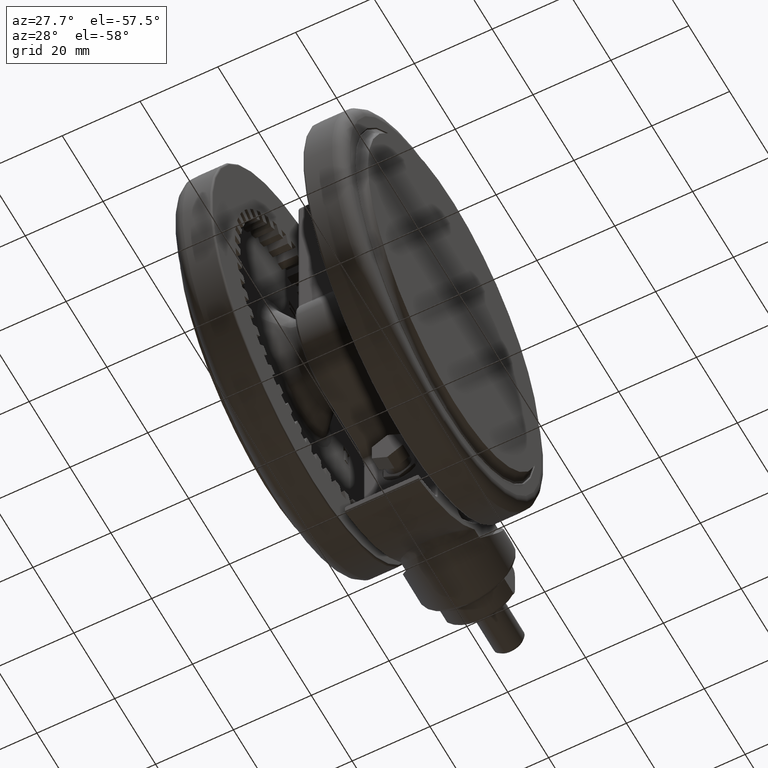
[diagram: clean part render]
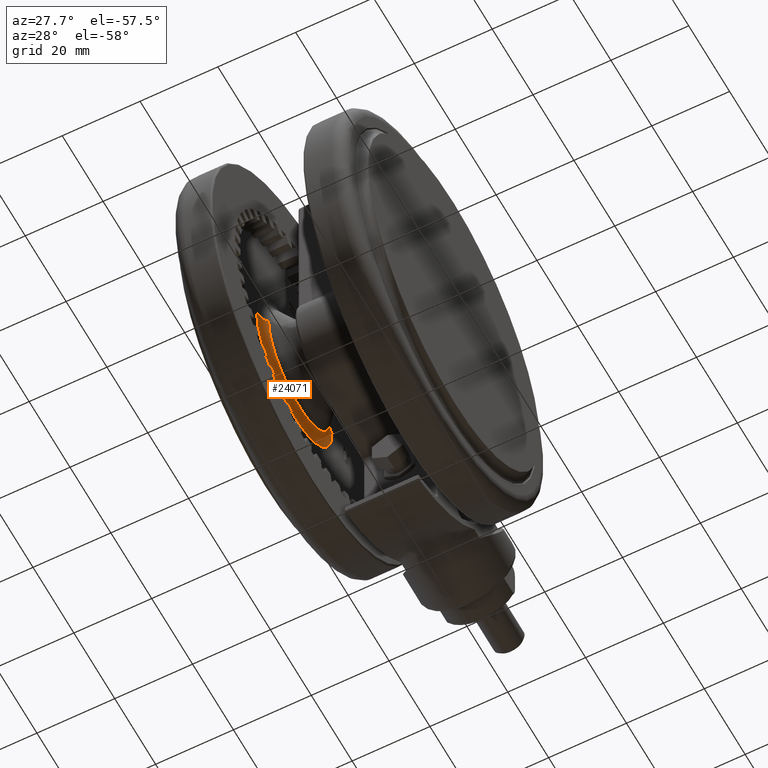
[diagram: same view with one face highlighted and labeled with its STEP entity id]
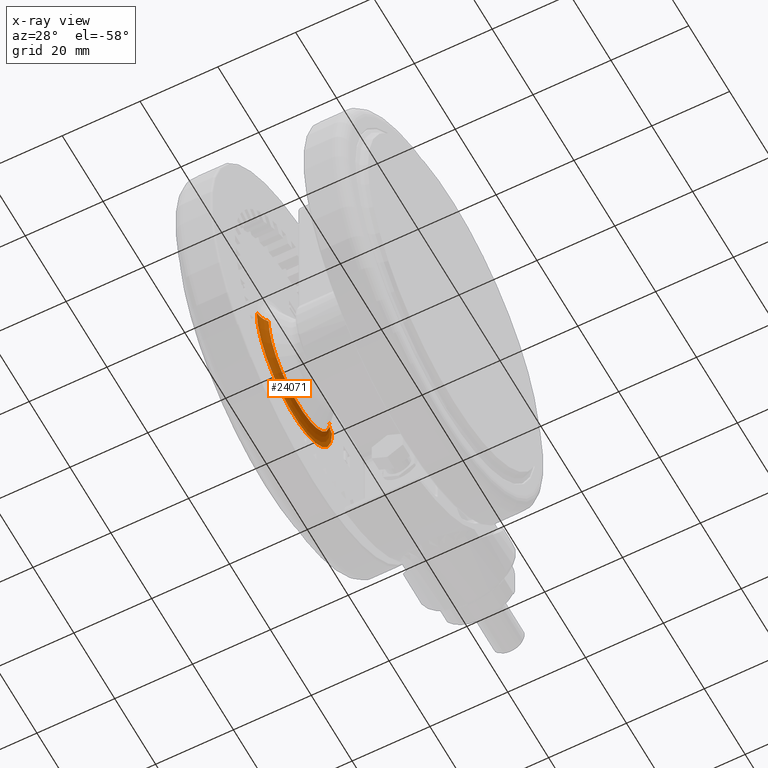
[diagram: x-ray of the same camera — body ghosted, the highlighted face saturated]
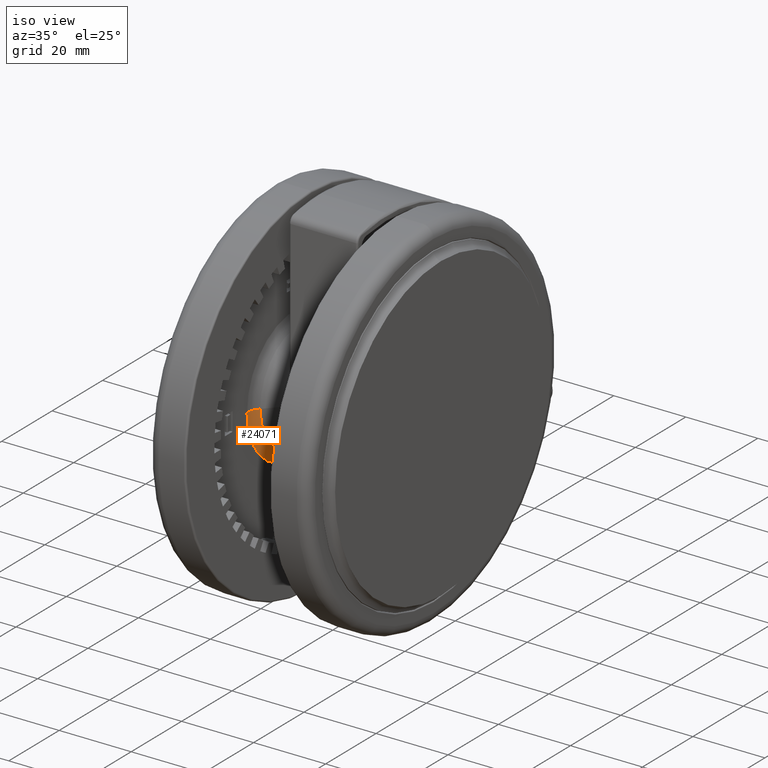
[diagram: same view with one face highlighted and labeled with its STEP entity id]
A machine part, auxiliary view. The second image highlights one B-rep face of the part: STEP entity #24071.
The next image is the same camera in x-ray: the body ghosted, the highlighted face saturated — about 4% of this face is hidden behind the body in this view.
A second angle (iso view) of the same face is appended — the face is thin or edge-on in the first view.
In plain terms, the highlighted toroidal blend (fillet) surface has major radius 18.433 mm and minor (blend) radius 5 mm.
Its self-contained STEP definition (entity closure, byte-faithful):
#988 = TOROIDAL_SURFACE ( 'NONE', #31178, 18.43303437365925400, 5.000000000000000000 ) ;
#2295 = EDGE_CURVE ( 'NONE', #31919, #7665, #28413, .T. ) ;
#2974 = EDGE_CURVE ( 'NONE', #31919, #24064, #31885, .T. ) ;
#3638 = EDGE_CURVE ( 'NONE', #29749, #24064, #19370, .T. ) ;
#4283 = EDGE_CURVE ( 'NONE', #7665, #29749, #19713, .T. ) ;
#7665 = VERTEX_POINT ( 'NONE', #25932 ) ;
#8313 = CARTESIAN_POINT ( 'NONE',  ( -2.775557561562891400E-014, 6.340112576823545600E-016, -39.69970036697979800 ) ) ;
#8988 = AXIS2_PLACEMENT_3D ( 'NONE', #29425, #14436, #31936 ) ;
#10311 = DIRECTION ( 'NONE',  ( -4.413456915335251100E-017, 1.000000000000000000, 9.696355658022186100E-017 ) ) ;
#10813 = DIRECTION ( 'NONE',  ( 4.413456915335252400E-017, -1.000000000000000000, 0.0000000000000000000 ) ) ;
#10916 = CARTESIAN_POINT ( 'NONE',  ( -2.919943723978601500E-014, -18.43303437365925400, -36.00000000000007800 ) ) ;
#12169 = CARTESIAN_POINT ( 'NONE',  ( -2.906771090363627100E-014, -15.06967040367769600, -39.69970036697979800 ) ) ;
#13420 = DIRECTION ( 'NONE',  ( -7.833011076138305600E-017, -1.000000000000000000, 0.0000000000000000000 ) ) ;
#14178 = AXIS2_PLACEMENT_3D ( 'NONE', #14350, #31846, #16860 ) ;
#14350 = CARTESIAN_POINT ( 'NONE',  ( -2.775557561562891400E-014, 7.600929347199579800E-016, -41.00000000000007800 ) ) ;
#14436 = DIRECTION ( 'NONE',  ( 1.000000000000000000, 4.413456915335259200E-017, 3.081487911019579400E-033 ) ) ;
#16860 = DIRECTION ( 'NONE',  ( -4.413456915335265300E-017, 1.000000000000000000, 0.0000000000000000000 ) ) ;
#17752 = CARTESIAN_POINT ( 'NONE',  ( -2.775557561562891400E-014, 2.752751518188486300E-016, -36.00000000000007800 ) ) ;
#19370 = CIRCLE ( 'NONE', #14178, 18.43303437365925400 ) ;
#19400 = AXIS2_PLACEMENT_3D ( 'NONE', #10916, #28383, #13420 ) ;
#19713 = CIRCLE ( 'NONE', #8988, 5.000000000000000900 ) ;
#19874 = ORIENTED_EDGE ( 'NONE', *, *, #2974, .T. ) ;
#20267 = CARTESIAN_POINT ( 'NONE',  ( -2.919943723978601500E-014, -18.43303437365925400, -41.00000000000007800 ) ) ;
#22044 = ORIENTED_EDGE ( 'NONE', *, *, #3638, .F. ) ;
#22097 = ORIENTED_EDGE ( 'NONE', *, *, #2295, .F. ) ;
#22785 = DIRECTION ( 'NONE',  ( 1.197956882225238700E-033, -9.696355658022186100E-017, 1.000000000000000000 ) ) ;
#22972 = AXIS2_PLACEMENT_3D ( 'NONE', #8313, #25790, #10813 ) ;
#23555 = EDGE_LOOP ( 'NONE', ( #22097, #19874, #22044, #30570 ) ) ;
#24064 = VERTEX_POINT ( 'NONE', #20267 ) ;
#24071 = ADVANCED_FACE ( 'NONE', ( #26731 ), #988, .F. ) ;
#25790 = DIRECTION ( 'NONE',  ( -1.834509741212626800E-034, -6.566365079556178500E-017, 1.000000000000000000 ) ) ;
#25804 = CARTESIAN_POINT ( 'NONE',  ( -2.856910964589930500E-014, 18.43303437365925400, -41.00000000000007800 ) ) ;
#25932 = CARTESIAN_POINT ( 'NONE',  ( -2.849488933603877600E-014, 15.06967040367769600, -39.69970036697979800 ) ) ;
#26731 = FACE_OUTER_BOUND ( 'NONE', #23555, .T. ) ;
#28383 = DIRECTION ( 'NONE',  ( -1.000000000000000000, 7.833011076138272300E-017, 8.793123008971617000E-033 ) ) ;
#28413 = CIRCLE ( 'NONE', #22972, 15.06967040367769400 ) ;
#29425 = CARTESIAN_POINT ( 'NONE',  ( -2.856910964589930500E-014, 18.43303437365925400, -36.00000000000007800 ) ) ;
#29749 = VERTEX_POINT ( 'NONE', #25804 ) ;
#30570 = ORIENTED_EDGE ( 'NONE', *, *, #4283, .F. ) ;
#31178 = AXIS2_PLACEMENT_3D ( 'NONE', #17752, #22785, #10311 ) ;
#31846 = DIRECTION ( 'NONE',  ( -1.197956882225238700E-033, 9.696355658022186100E-017, -1.000000000000000000 ) ) ;
#31885 = CIRCLE ( 'NONE', #19400, 5.000000000000000900 ) ;
#31919 = VERTEX_POINT ( 'NONE', #12169 ) ;
#31936 = DIRECTION ( 'NONE',  ( -4.413456915335197500E-017, 1.000000000000000000, 0.0000000000000000000 ) ) ;